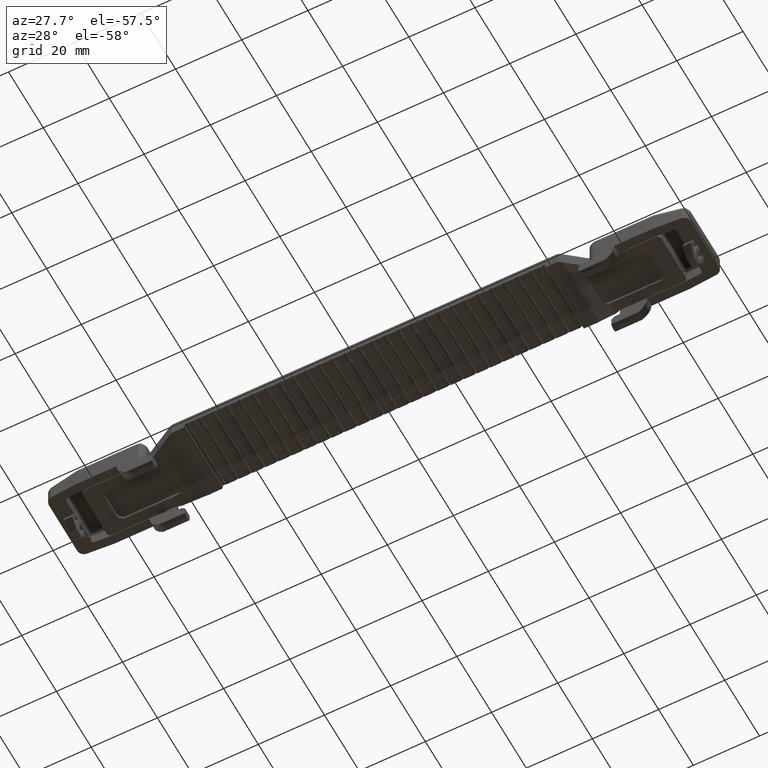
[diagram: clean part render]
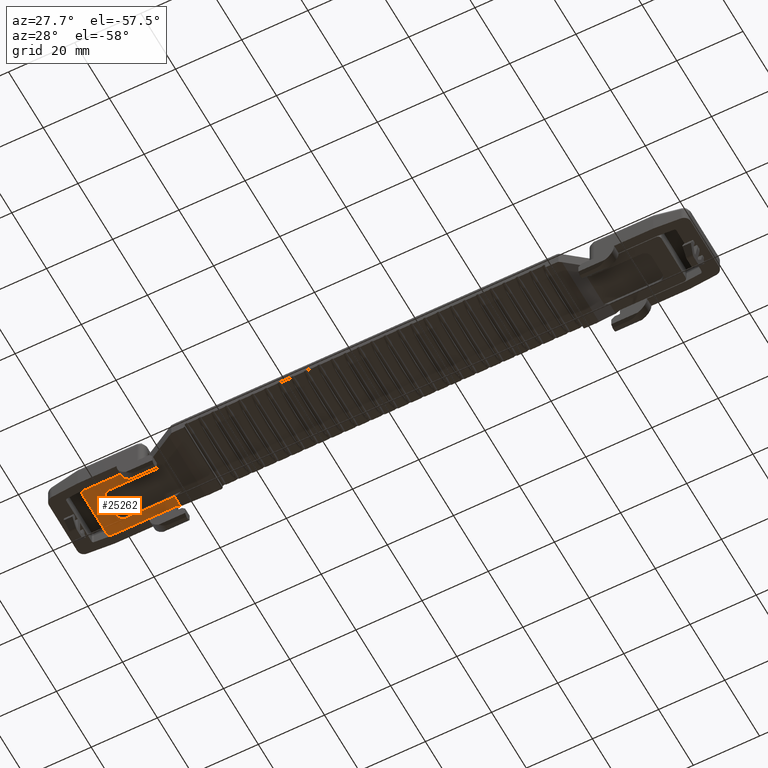
[diagram: same view with one face highlighted and labeled with its STEP entity id]
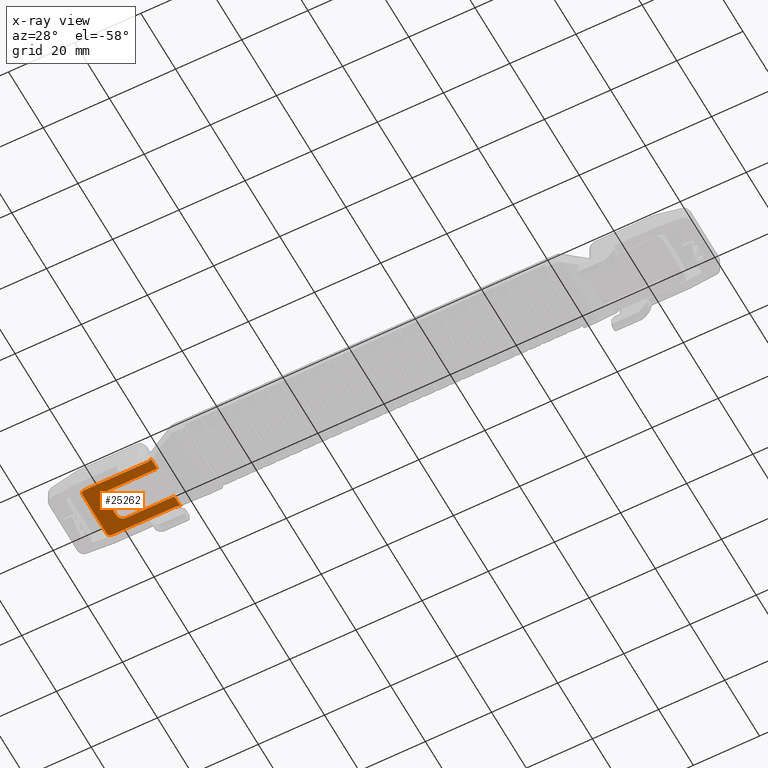
[diagram: x-ray of the same camera — body ghosted, the highlighted face saturated]
A machine part, auxiliary view. The second image highlights one B-rep face of the part: STEP entity #25262.
The next image is the same camera in x-ray: the body ghosted, the highlighted face saturated — about 0% of this face is hidden behind the body in this view.
In plain terms, the highlighted face is a freeform B-spline surface patch.
Its self-contained STEP definition (entity closure, byte-faithful):
#3021=CARTESIAN_POINT('',(-87.500000000000000,-7.0,0.0));
#3022=VERTEX_POINT('',#3021);
#3028=CARTESIAN_POINT('',(-86.500000000000000,-8.0,0.0));
#3029=VERTEX_POINT('',#3028);
#3030=CARTESIAN_POINT('',(-86.500000000000000,-8.0,0.0));
#3031=CARTESIAN_POINT('',(-87.500000000000000,-8.0,0.0));
#3032=CARTESIAN_POINT('',(-87.500000000000000,-7.0,0.0));
#3040=(BOUNDED_CURVE()B_SPLINE_CURVE(2,(#3030,#3031,#3032),.UNSPECIFIED.,.F.,.U.)CURVE()GEOMETRIC_REPRESENTATION_ITEM()QUASI_UNIFORM_CURVE()RATIONAL_B_SPLINE_CURVE((1.0,0.707106781186548,1.0))REPRESENTATION_ITEM(''));
#3041=EDGE_CURVE('',#3029,#3022,#3040,.T.);
#3080=CARTESIAN_POINT('',(-87.500000000000000,7.0,0.0));
#3081=VERTEX_POINT('',#3080);
#3082=CARTESIAN_POINT('',(-86.500000000000000,8.0,0.0));
#3083=VERTEX_POINT('',#3082);
#3084=CARTESIAN_POINT('',(-87.500000000000000,7.0,0.0));
#3085=CARTESIAN_POINT('',(-87.500000000000000,8.0,0.0));
#3086=CARTESIAN_POINT('',(-86.500000000000000,8.0,0.0));
#3094=(BOUNDED_CURVE()B_SPLINE_CURVE(2,(#3084,#3085,#3086),.UNSPECIFIED.,.F.,.U.)CURVE()GEOMETRIC_REPRESENTATION_ITEM()QUASI_UNIFORM_CURVE()RATIONAL_B_SPLINE_CURVE((1.0,0.707106781186548,1.0))REPRESENTATION_ITEM(''));
#3095=EDGE_CURVE('',#3081,#3083,#3094,.T.);
#3432=CARTESIAN_POINT('',(-65.957926129000583,-5.0,0.0));
#3433=VERTEX_POINT('',#3432);
#3454=CARTESIAN_POINT('',(-65.957926129000583,-8.408756785273381,0.0));
#3455=VERTEX_POINT('',#3454);
#3469=CARTESIAN_POINT('',(-65.957926129000583,-5.0,0.0));
#3470=CARTESIAN_POINT('',(-65.957926129000583,-8.408756785273381,0.0));
#3471=QUASI_UNIFORM_CURVE('',1,(#3469,#3470),.UNSPECIFIED.,.F.,.U.);
#3472=EDGE_CURVE('',#3433,#3455,#3471,.T.);
#3493=CARTESIAN_POINT('',(-65.957926129000583,8.408756785273381,0.0));
#3494=VERTEX_POINT('',#3493);
#3515=CARTESIAN_POINT('',(-65.957926129000583,5.0,0.0));
#3516=VERTEX_POINT('',#3515);
#3530=CARTESIAN_POINT('',(-65.957926129000583,8.408756785273381,0.0));
#3531=CARTESIAN_POINT('',(-65.957926129000583,5.0,0.0));
#3532=QUASI_UNIFORM_CURVE('',1,(#3530,#3531),.UNSPECIFIED.,.F.,.U.);
#3533=EDGE_CURVE('',#3494,#3516,#3532,.T.);
#4137=CARTESIAN_POINT('',(-67.134500465374401,-8.0,0.0));
#4138=VERTEX_POINT('',#4137);
#4139=CARTESIAN_POINT('',(-65.957926129000583,-8.408756785273381,0.0));
#4140=CARTESIAN_POINT('',(-67.134500465374401,-8.0,0.0));
#4141=QUASI_UNIFORM_CURVE('',1,(#4139,#4140),.UNSPECIFIED.,.F.,.U.);
#4142=EDGE_CURVE('',#3455,#4138,#4141,.T.);
#4223=CARTESIAN_POINT('',(-67.134500465374401,8.0,0.0));
#4224=VERTEX_POINT('',#4223);
#4225=CARTESIAN_POINT('',(-65.957926129000583,8.408756785273381,0.0));
#4226=CARTESIAN_POINT('',(-67.134500465374401,8.0,0.0));
#4227=QUASI_UNIFORM_CURVE('',1,(#4225,#4226),.UNSPECIFIED.,.F.,.U.);
#4228=EDGE_CURVE('',#3494,#4224,#4227,.T.);
#23564=CARTESIAN_POINT('',(-80.500299999999996,-5.0,0.0));
#23565=VERTEX_POINT('',#23564);
#23566=CARTESIAN_POINT('',(-82.500299999999996,-3.0,0.0));
#23567=VERTEX_POINT('',#23566);
#23568=CARTESIAN_POINT('',(-80.500299999999996,-5.0,0.0));
#23569=CARTESIAN_POINT('',(-82.500299999999996,-5.000000000000001,0.0));
#23570=CARTESIAN_POINT('',(-82.500299999999996,-3.0,0.0));
#23578=(BOUNDED_CURVE()B_SPLINE_CURVE(2,(#23568,#23569,#23570),.UNSPECIFIED.,.F.,.U.)CURVE()GEOMETRIC_REPRESENTATION_ITEM()QUASI_UNIFORM_CURVE()RATIONAL_B_SPLINE_CURVE((1.0,0.707106781186548,1.0))REPRESENTATION_ITEM(''));
#23579=EDGE_CURVE('',#23565,#23567,#23578,.T.);
#23608=CARTESIAN_POINT('',(-65.957926129000583,-5.0,0.0));
#23609=CARTESIAN_POINT('',(-80.500299999999996,-5.0,0.0));
#23610=QUASI_UNIFORM_CURVE('',1,(#23608,#23609),.UNSPECIFIED.,.F.,.U.);
#23611=EDGE_CURVE('',#3433,#23565,#23610,.T.);
#23650=CARTESIAN_POINT('',(-80.500299999999996,5.0,0.0));
#23651=VERTEX_POINT('',#23650);
#23652=CARTESIAN_POINT('',(-80.500299999999996,5.0,0.0));
#23653=CARTESIAN_POINT('',(-65.957926129000583,5.0,0.0));
#23654=QUASI_UNIFORM_CURVE('',1,(#23652,#23653),.UNSPECIFIED.,.F.,.U.);
#23655=EDGE_CURVE('',#23651,#3516,#23654,.T.);
#23687=CARTESIAN_POINT('',(-82.500299999999996,3.0,0.0));
#23688=VERTEX_POINT('',#23687);
#23689=CARTESIAN_POINT('',(-82.500299999999996,3.0,0.0));
#23690=CARTESIAN_POINT('',(-82.500299999999996,5.000000000000001,0.0));
#23691=CARTESIAN_POINT('',(-80.500299999999996,5.0,0.0));
#23699=(BOUNDED_CURVE()B_SPLINE_CURVE(2,(#23689,#23690,#23691),.UNSPECIFIED.,.F.,.U.)CURVE()GEOMETRIC_REPRESENTATION_ITEM()QUASI_UNIFORM_CURVE()RATIONAL_B_SPLINE_CURVE((1.0,0.707106781186548,1.0))REPRESENTATION_ITEM(''));
#23700=EDGE_CURVE('',#23688,#23651,#23699,.T.);
#23717=CARTESIAN_POINT('',(-82.500299999999996,-3.0,0.0));
#23718=CARTESIAN_POINT('',(-82.500299999999996,3.0,0.0));
#23719=QUASI_UNIFORM_CURVE('',1,(#23717,#23718),.UNSPECIFIED.,.F.,.U.);
#23720=EDGE_CURVE('',#23567,#23688,#23719,.T.);
#24119=CARTESIAN_POINT('',(-87.500000000000000,7.0,0.0));
#24120=CARTESIAN_POINT('',(-87.500000000000000,-7.0,0.0));
#24121=QUASI_UNIFORM_CURVE('',1,(#24119,#24120),.UNSPECIFIED.,.F.,.U.);
#24122=EDGE_CURVE('',#3081,#3022,#24121,.T.);
#25233=CARTESIAN_POINT('',(-64.881897154237961,-9.248792029138940,0.0));
#25234=CARTESIAN_POINT('',(-88.576027241352278,-9.248792029138940,0.0));
#25235=CARTESIAN_POINT('',(-64.881897154237961,9.248792029138938,0.0));
#25236=CARTESIAN_POINT('',(-88.576027241352278,9.248792029138938,0.0));
#25237=B_SPLINE_SURFACE_WITH_KNOTS('',1,1,((#25233,#25235),(#25234,#25236)),.UNSPECIFIED.,.F.,.F.,.U.,(2,2),(2,2),(0.0,23.694130087114321),(0.0,18.497584058277880),.UNSPECIFIED.);
#25238=ORIENTED_EDGE('',*,*,#24122,.F.);
#25239=ORIENTED_EDGE('',*,*,#3095,.T.);
#25240=CARTESIAN_POINT('',(-67.134500465374401,8.0,0.0));
#25241=CARTESIAN_POINT('',(-86.500000000000000,8.0,0.0));
#25242=QUASI_UNIFORM_CURVE('',1,(#25240,#25241),.UNSPECIFIED.,.F.,.U.);
#25243=EDGE_CURVE('',#4224,#3083,#25242,.T.);
#25244=ORIENTED_EDGE('',*,*,#25243,.F.);
#25245=ORIENTED_EDGE('',*,*,#4228,.F.);
#25246=ORIENTED_EDGE('',*,*,#3533,.T.);
#25247=ORIENTED_EDGE('',*,*,#23655,.F.);
#25248=ORIENTED_EDGE('',*,*,#23700,.F.);
#25249=ORIENTED_EDGE('',*,*,#23720,.F.);
#25250=ORIENTED_EDGE('',*,*,#23579,.F.);
#25251=ORIENTED_EDGE('',*,*,#23611,.F.);
#25252=ORIENTED_EDGE('',*,*,#3472,.T.);
#25253=ORIENTED_EDGE('',*,*,#4142,.T.);
#25254=CARTESIAN_POINT('',(-86.500000000000000,-8.0,0.0));
#25255=CARTESIAN_POINT('',(-67.134500465374401,-8.0,0.0));
#25256=QUASI_UNIFORM_CURVE('',1,(#25254,#25255),.UNSPECIFIED.,.F.,.U.);
#25257=EDGE_CURVE('',#3029,#4138,#25256,.T.);
#25258=ORIENTED_EDGE('',*,*,#25257,.F.);
#25259=ORIENTED_EDGE('',*,*,#3041,.T.);
#25260=EDGE_LOOP('',(#25238,#25239,#25244,#25245,#25246,#25247,#25248,#25249,#25250,#25251,#25252,#25253,#25258,#25259));
#25261=FACE_OUTER_BOUND('',#25260,.T.);
#25262=ADVANCED_FACE('',(#25261),#25237,.T.);